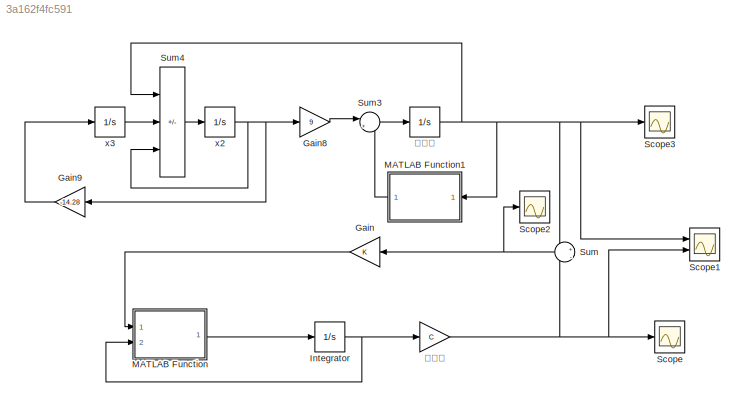
MODEL slx_3a162f4fc591
KIND model
CONFIG AbsTol = auto
CONFIG FixedStep = auto
CONFIG MaxStep = auto
CONFIG MinStep = auto
CONFIG RelTol = 1e-3
CONFIG SampleTimeConstraint = Unconstrained
CONFIG Solver = VariableStepAuto
CONFIG SolverMode = SingleTasking
CONFIG SolverName = VariableStepAuto
CONFIG StartTime = 0.0
CONFIG StopTime = 10
BLOCK [Gain] Gain
  Gain = K
  Multiplication = Matrix(K*u)
BLOCK [Gain] Gain8
  Gain = 9
BLOCK [Gain] Gain9
  Gain = -14.28
BLOCK [Integrator] Integrator
  InitialCondition = [-0.5 0.5 2]
  Ports = [1, 1]
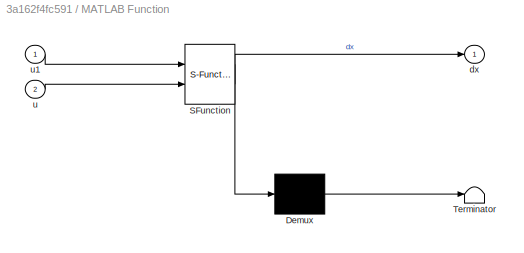
BLOCK [SubSystem] MATLAB Function
  ErrorFcn = Stateflow.Translate.translate
  PermitHierarchicalResolution = ExplicitOnly
  Ports = [2, 1]
  RequestExecContextInheritance = off
  SFBlockType = MATLAB Function
  TreatAsAtomicUnit = on
BLOCK [Demux] MATLAB Function/ Demux 
  Outputs = 1
  Ports = [1, 1]
BLOCK [S-Function] MATLAB Function/ SFunction 
  EnableBusSupport = on
  FunctionName = sf_sfun
  PortCounts = [2 2]
  Ports = [2, 2]
  SFunctionDeploymentMode = off
  Tag = Stateflow S-Function Caishidianlu_design_tu 1
BLOCK [Terminator] MATLAB Function/ Terminator 
BLOCK [Outport] MATLAB Function/dx
BLOCK [Inport] MATLAB Function/u
  Port = 2
BLOCK [Inport] MATLAB Function/u1
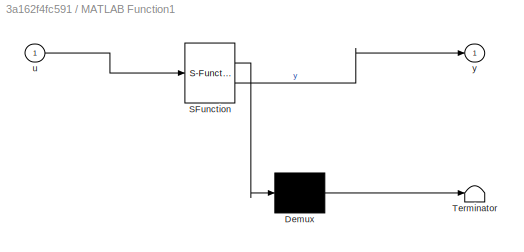
BLOCK [SubSystem] MATLAB Function1
  ErrorFcn = Stateflow.Translate.translate
  PermitHierarchicalResolution = ExplicitOnly
  Ports = [1, 1]
  RequestExecContextInheritance = off
  SFBlockType = MATLAB Function
  TreatAsAtomicUnit = on
BLOCK [Demux] MATLAB Function1/ Demux 
  Outputs = 1
  Ports = [1, 1]
BLOCK [S-Function] MATLAB Function1/ SFunction 
  EnableBusSupport = on
  FunctionName = sf_sfun
  PortCounts = [1 2]
  Ports = [1, 2]
  SFunctionDeploymentMode = off
  Tag = Stateflow S-Function Caishidianlu_design_tu 2
BLOCK [Terminator] MATLAB Function1/ Terminator 
BLOCK [Inport] MATLAB Function1/u
BLOCK [Outport] MATLAB Function1/y
BLOCK [Scope] Scope
  Floating = off
  NumInputPorts = 1
  Ports = [1]
  ScopeSpecificationString = Simulink.scopes.TimeScopeBlockCfg('CurrentConfiguration', extmgr.ConfigurationSet(extmgr.Configuration('Core','General UI',true,'FigureColor',[0.941176470588235 0.941176470588235 0.941176470588235]),extmgr.Configuration('Core','Source UI',true),extmgr.Configuration('Sources','WiredSimulink',true,'DataLoggingVariableName','ScopeData1'),extmgr.Configuration('Visuals','Time Domain',true,'SerializedDi...<+1749ch>
BLOCK [Scope] Scope1
  Floating = off
  NumInputPorts = 2
  Ports = [2]
  ScopeSpecificationString = Simulink.scopes.TimeScopeBlockCfg('CurrentConfiguration', extmgr.ConfigurationSet(extmgr.Configuration('Core','General UI',true,'FigureColor',[0.941176470588235 0.941176470588235 0.941176470588235]),extmgr.Configuration('Core','Source UI',true),extmgr.Configuration('Sources','WiredSimulink',true,'DataLoggingVariableName','ScopeData2'),extmgr.Configuration('Visuals','Time Domain',true,'SerializedDi...<+1744ch>
BLOCK [Scope] Scope2
  Floating = off
  NumInputPorts = 1
  Ports = [1]
  ScopeSpecificationString = Simulink.scopes.TimeScopeBlockCfg('CurrentConfiguration', extmgr.ConfigurationSet(extmgr.Configuration('Core','General UI',true,'FigureColor',[0.941176470588235 0.941176470588235 0.941176470588235]),extmgr.Configuration('Core','Source UI',true),extmgr.Configuration('Sources','WiredSimulink',true,'DataLogging',true,'DataLoggingSaveFormat','StructureWithTime'),extmgr.Configuration('Visuals','Time Do...<+1820ch>
BLOCK [Scope] Scope3
  Floating = off
  NumInputPorts = 1
  Ports = [1]
  ScopeSpecificationString = Simulink.scopes.TimeScopeBlockCfg('CurrentConfiguration', extmgr.ConfigurationSet(extmgr.Configuration('Core','General UI',true,'FigureColor',[0.941176470588235 0.941176470588235 0.941176470588235]),extmgr.Configuration('Core','Source UI',true),extmgr.Configuration('Sources','WiredSimulink',true,'DataLoggingVariableName','ScopeData3'),extmgr.Configuration('Visuals','Time Domain',true,'SerializedDi...<+2571ch>
BLOCK [Sum] Sum
  Inputs = +|-
  Ports = [2, 1]
BLOCK [Sum] Sum3
  Inputs = |++
  Ports = [2, 1]
BLOCK [Sum] Sum4
  IconShape = rectangular
  Inputs = ++-
  Ports = [3, 1]
BLOCK [Integrator] x2
  InitialCondition = 0.1
  Ports = [1, 1]
BLOCK [Integrator] x3
  InitialCondition = 0.2
  Ports = [1, 1]
BLOCK [Integrator] 主系统
  InitialCondition = -0.1
  Ports = [1, 1]
BLOCK [Gain] 从系统
  Gain = C
  Multiplication = Matrix(K*u)
LINE Gain8:1 -> Sum3:1
LINE Gain9:1 -> x3:1
LINE Gain:1 -> MATLAB Function:1
NET Integrator:1 -> MATLAB Function:2, 从系统:1
LINE MATLAB Function1:1 -> Sum3:2
LINE MATLAB Function:1 -> Integrator:1
LINE Sum3:1 -> 主系统:1
LINE Sum4:1 -> x2:1
NET Sum:1 -> Gain:1, Scope2:1
NET x2:1 -> Gain8:1, Gain9:1, Sum4:3
LINE x3:1 -> Sum4:2
NET 主系统:1 -> MATLAB Function1:1, Scope1:1, Scope3:1, Sum4:1, Sum:1
NET 从系统:1 -> Scope1:2, Scope:1, Sum:2
note: NET lines group one-source signal fan-out (src -> all destinations, sorted); 1:1 wires keep LINE
CHART MATLAB Function states=1 transitions=1
  STATE_LABEL 'eML_blk_kernel()'
  STATE_LABEL 'SCRIPT:\nfunction dx = fcn(u1,u)\na=9;b=14.28;m0=-1/7;m1=2/7;c=1;\nA=[ -a*m1,a,0;1,-2, 1;0, -b, 0];\nH=[-a*(m0-m1);0;0];\nC=[1,0,0];\nD=[1,0,0];\nW=1;\nx1=u(1);\nx2=u(2);\nx3=u(3);\nsigma=1/2*(abs(x1+c) - abs(x1-c));\ndx1=-a*m1*x1+a*x2-a*(m0-m1)*sigma+u1(1);\ndx2=x1-x2+x3+u1(2) ;\ndx3=-b*x2+u1(3);\ndx=[dx1;dx2;dx3];'
CHART MATLAB Function1 states=1 transitions=1
  STATE_LABEL 'eML_blk_kernel()'
  STATE_LABEL 'SCRIPT:\nfunction y = fcn(u)\nx1=u;\nx1dao=-((2*9)/7)*x1+(((9*3)/7)/2)*(abs(x1+1)-abs(x1-1))\ny=x1dao;\n\n'
